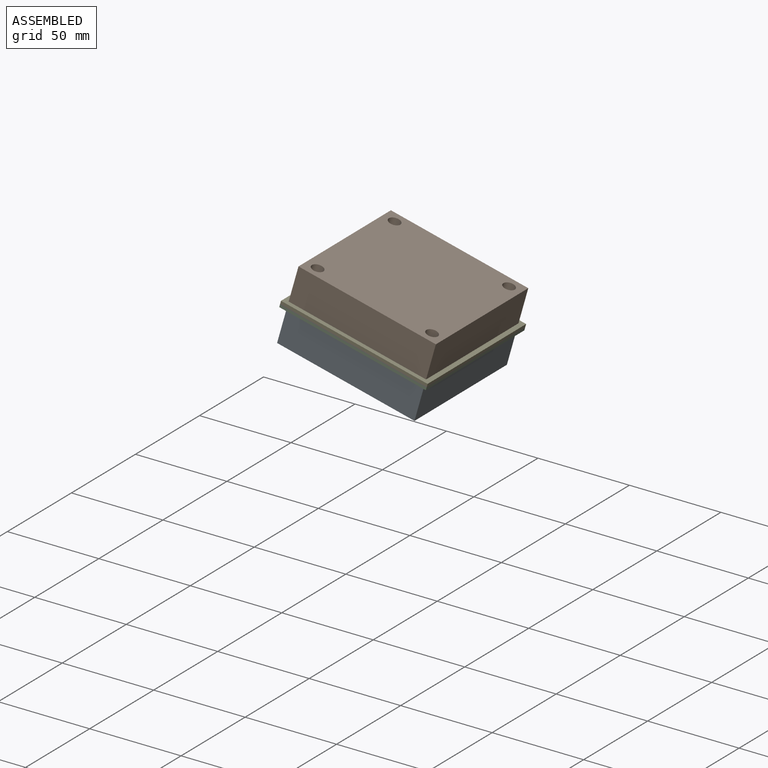
[diagram: assembled view]
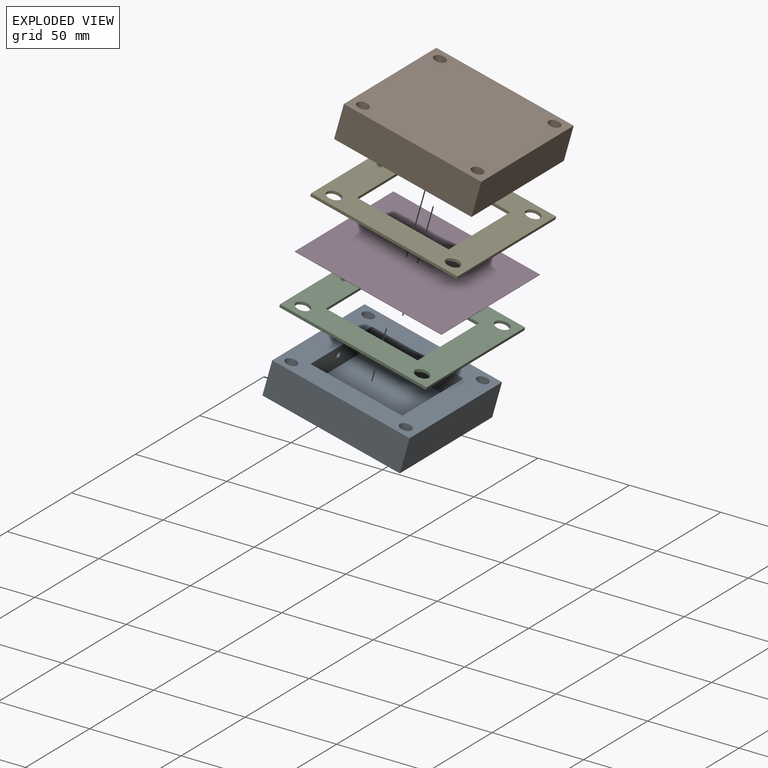
[diagram: exploded view]
GUIDED TOUR — MATED ASSEMBLY (Onshape document c1930f39cddbc49c126d4a82, AutoMate assembly c1930f39cddbc49c126d4a82_c4ecb20c4135cb43e5aa966c_4b7edb8deb91d0a844620ba2_default)

This assembly has 5 components, labeled P0..P4 below (a component is one placed occurrence of a part; the same part can appear more than once), held together by 4 mates. A mate is a constraint between two components; its type names the relative motion it leaves free:
  FASTENED — locks the two components together rigidly (no relative motion).
Axis/direction vectors are unit vectors and 'through' points are millimeter coordinates, both in the assembly's world frame.

MATES
  1. FASTENED "Fastened 3": P2 <-> P0, direction (-0.257, -0.036, -0.966) through (-26.39, 28.82, -5.89) mm
  2. FASTENED "Fastened 1": P4 <-> P1, direction (0.257, 0.036, 0.966) through (23.55, 30.38, -15.67) mm
  3. FASTENED "Fastened 2": P4 <-> P3, direction (-0.257, -0.036, -0.966) through (38.42, 15.53, -20.72) mm
  4. FASTENED "Fastened 4": P3 <-> P2, direction (-0.257, -0.036, -0.966) through (-2.38, 54.96, -11.59) mm

ASSEMBLY ORDER
  1. P4 — the base component [order verified]
  2. P3 [order verified]
  3. P2 [order verified]
  4. P1 [order verified]
  5. P0 [order verified]
Order-tag legend:
  [order verified] — this step's position reverses a verified removal order: the component was checked to insert without passing through the ones already placed.

Of the 5 components, 5 carry the full construction recipe — the FeatureScript program that regenerates the part's solid from scratch; the rest are supplied as boundary geometry only.
Each toured component is shown spotlighted twice — in the assembled view, then in the exploded view, where a leader line traces a displaced component back to its assembled socket (saturated green if recipe-attached, orange if geometry-only; every other component desaturated gray) — followed by its recipe or geometry summary and the mates that hold it.
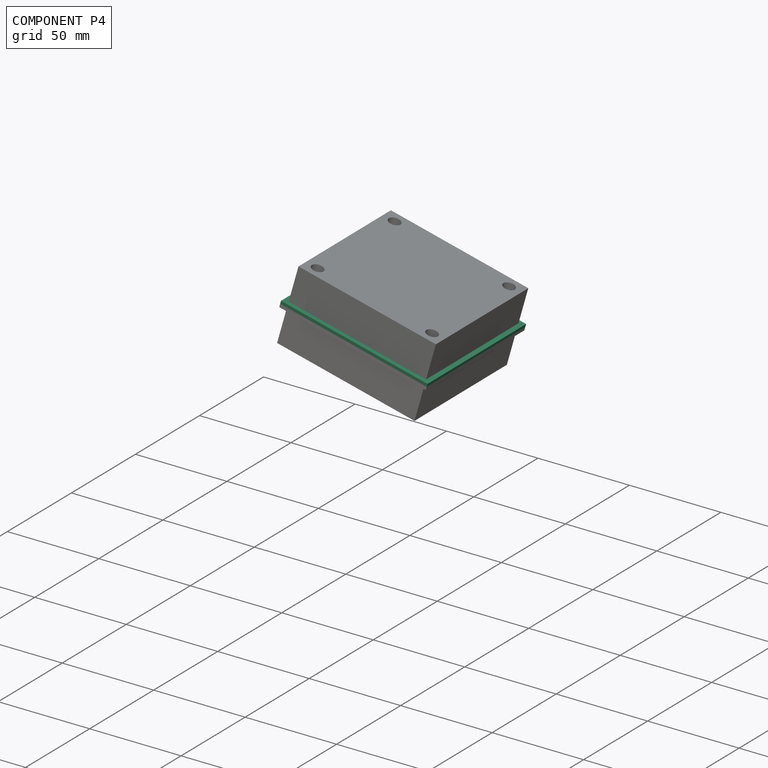
[diagram: component P4 — assembled]
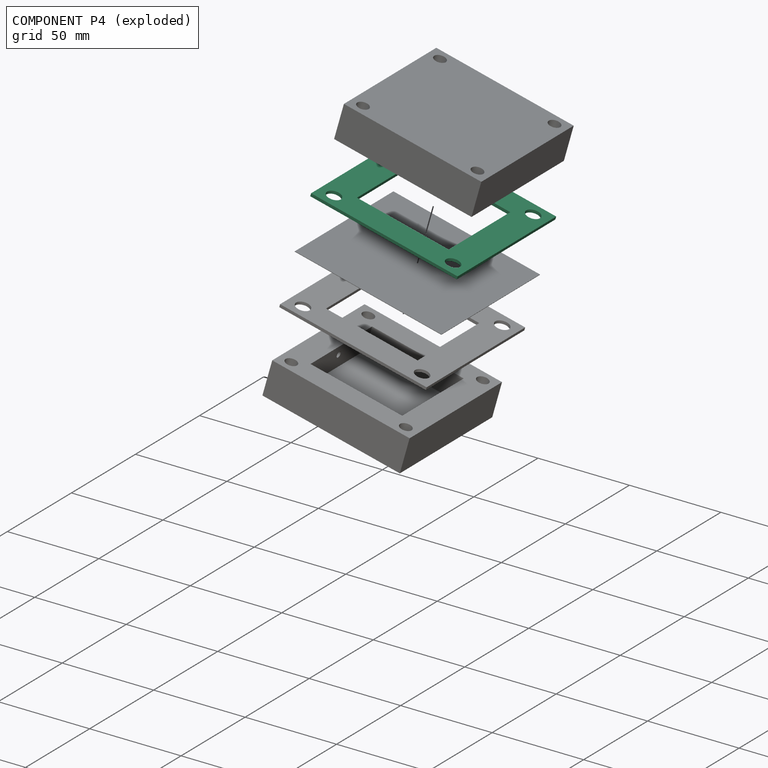
[diagram: component P4 — exploded]
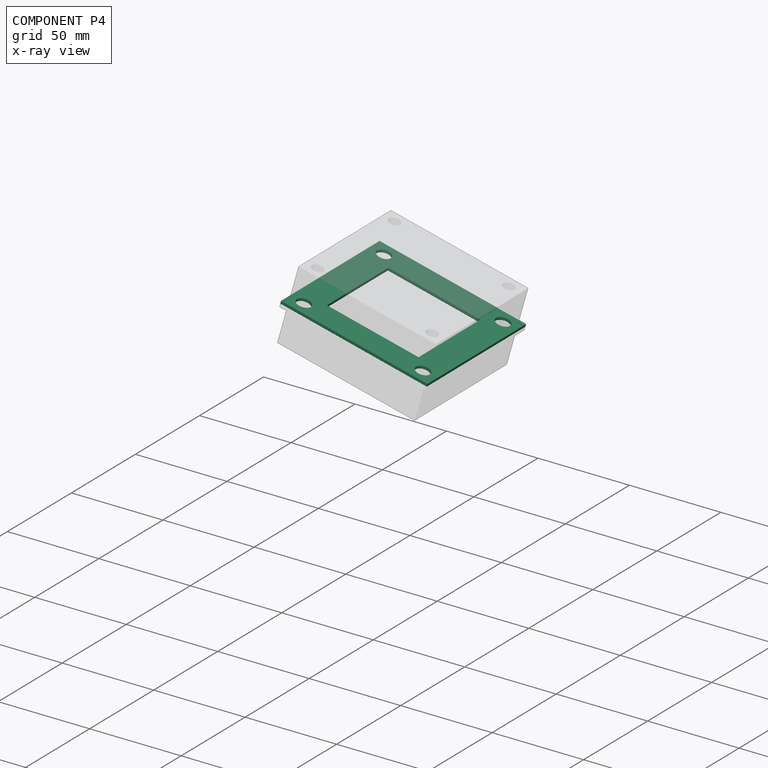
[diagram: component P4 — x-ray view]
COMPONENT P4 — same part as P2 (CADFS 00156926); its construction recipe is shown at P2.
Held by: FASTENED mate "Fastened 1" to P1; FASTENED mate "Fastened 2" to P3.
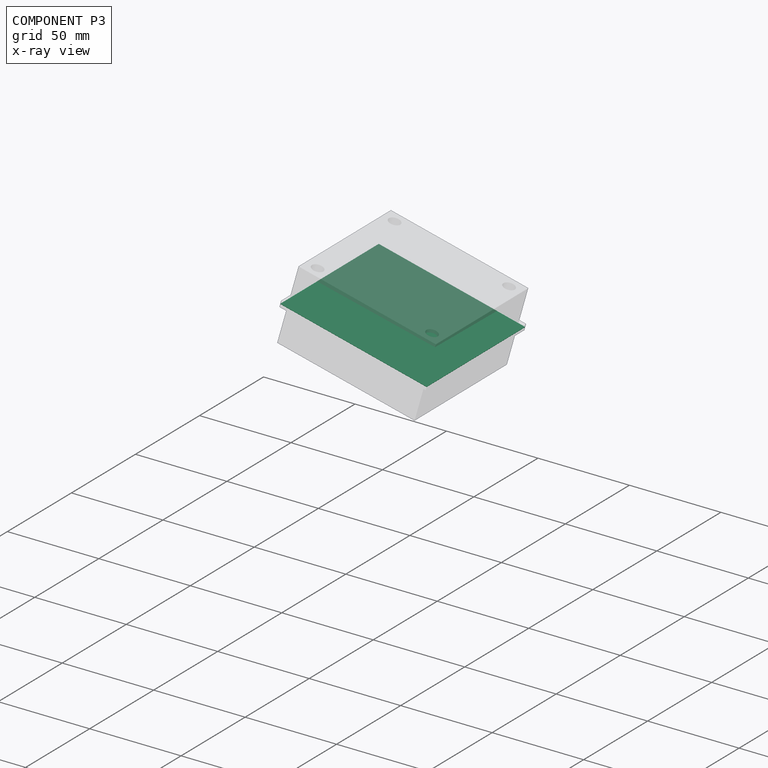
[diagram: component P3 — x-ray view]
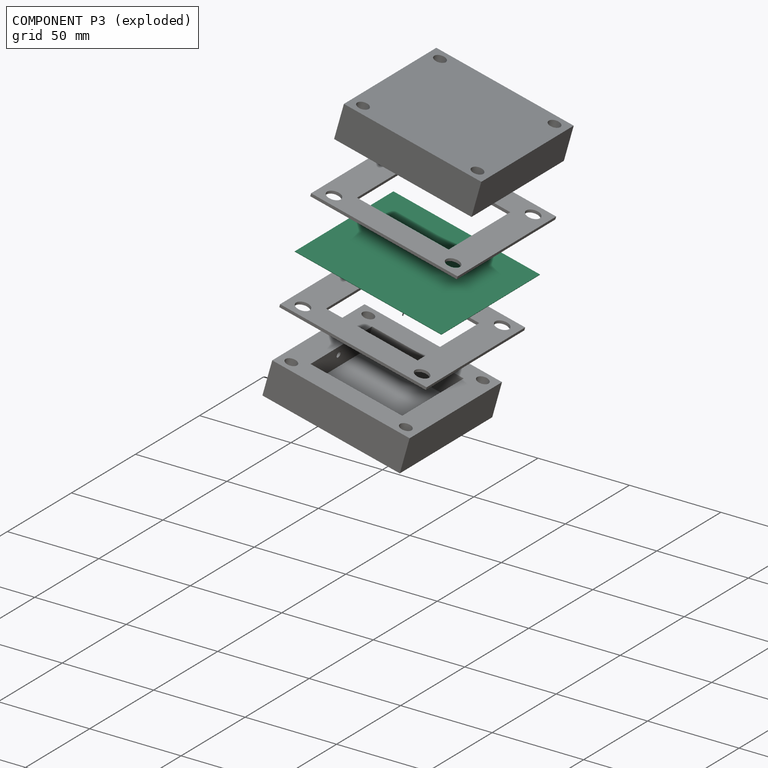
[diagram: component P3 — exploded]
COMPONENT P3 — recipe-attached (CADFS 00156925, mesh-verified: the recipe's output STEP matches this component's geometry to below the mesh-comparison resolution (tessellation chordal tolerance ~0.172 mm)).
Held by: FASTENED mate "Fastened 2" to P4; FASTENED mate "Fastened 4" to P2.
Construction recipe (FeatureScript — the CAD program that rebuilds this solid; sketch coordinates are in the units given by the * unit suffixes, e.g. mm):

FeatureScript 1549;
import(path : "onshape/std/geometry.fs", version : "1549.0");
import(path : "onshape/std/common.fs", version : "1549.0");
const mm = millimeter;
const VERTEX = EntityType.VERTEX;
const EDGE = EntityType.EDGE;
const FACE = EntityType.FACE;
const BODY = EntityType.BODY;
function v(x, y){return vector(x, y);}
function OD(order){return orderDisambiguation(order);}
function OSD(set){return originalSetDisambiguation(set);}
function TD(topology){return topologyDisambiguation(topology);}
function TDD(query){return trueDependencyDisambiguation(query);}
function sQuery(a, b, c) {return sketchEntityQuery(a, b, c);}

annotation { "Feature Type Name" : "Feature", "Feature Type Description" : "" }
export const myFeature = defineFeature(function(context is Context, id is Id, definition is map)
    precondition{}
    {
        {
            var Q0;
            Q0=qCreatedBy(makeId("Top.planeOp"),FACE);
            var sketch = newSketch(context, id + "F0", { "sketchPlane" : qUnion([Q0])});
            skLineSegment(sketch, "E0.bottom", {"start": v(-40.64, 40.64) * mm, "end": v(40.64, 40.64) * mm});
            skLineSegment(sketch, "E0.top", {"start": v(-40.64, -40.64) * mm, "end": v(40.64, -40.64) * mm});
            skLineSegment(sketch, "E0.left", {"start": v(-40.64, 40.64) * mm, "end": v(-40.64, -40.64) * mm});
            skLineSegment(sketch, "E0.right", {"start": v(40.64, 40.64) * mm, "end": v(40.64, -40.64) * mm});
            skLineSegment(sketch, "E1", {"start": v(0, 40.64) * mm, "end": v(0, 0) * mm, "construction": true});
            skLineSegment(sketch, "E2", {"start": v(0, 0) * mm, "end": v(-40.64, 0) * mm, "construction": true});
            skSolve(sketch);
        }
        {
            var Q0;
            Q0=makeQuery(id+"F0.imprint","IMPRINT",FACE,{"disambiguationData":[TD([[makeQuery(id+"F0.imprint","IMPRINT",EDGE,{"derivedFrom":sQuery(id+"F0.wireOp",EDGE,"E0.bottom")}),-1.0]])]});
            extrude(context, id + "F1", {"entities" : qUnion([Q0]), "depth" : 0.25 * mm});
        }
    });
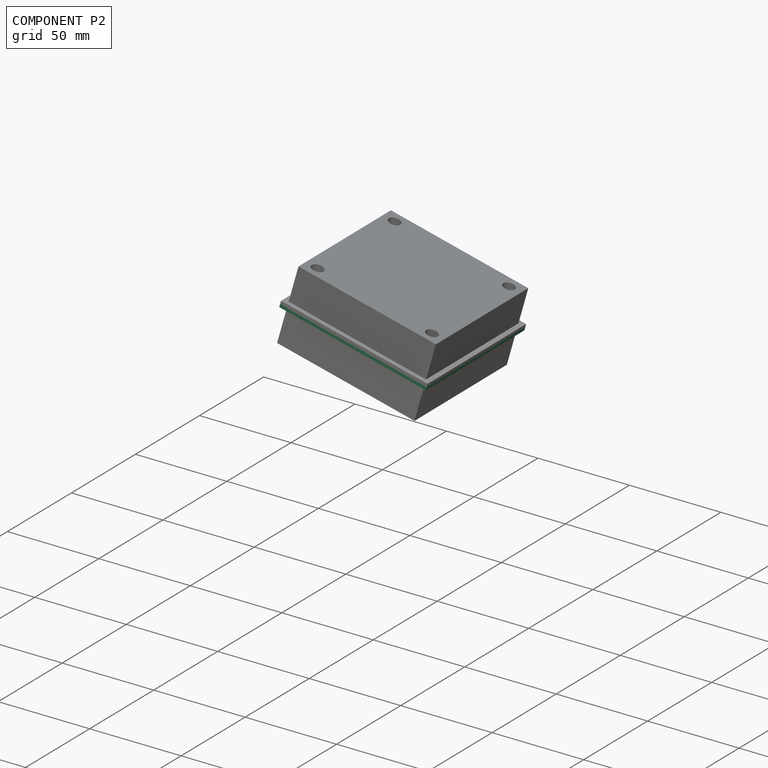
[diagram: component P2 — assembled]
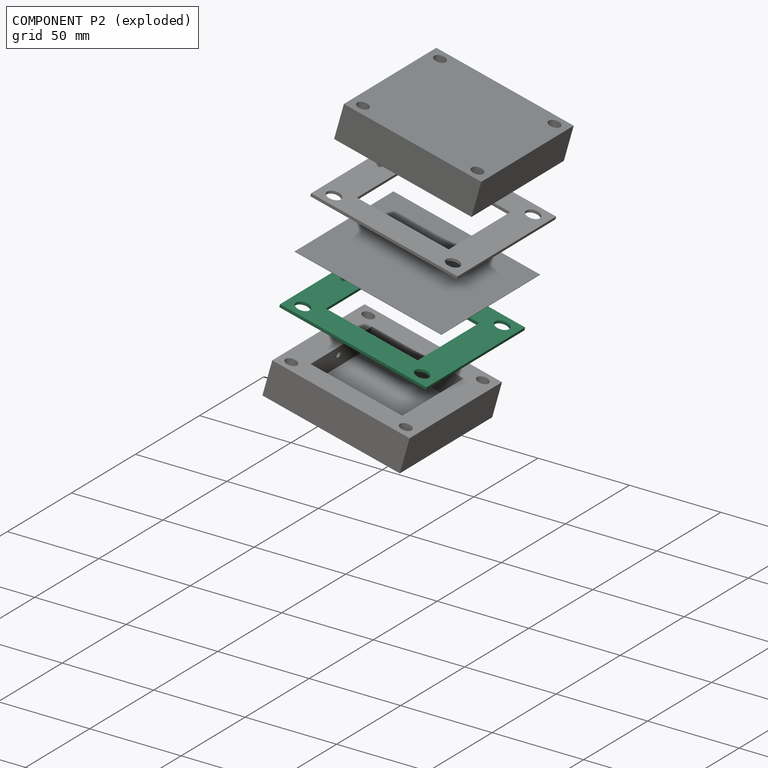
[diagram: component P2 — exploded]
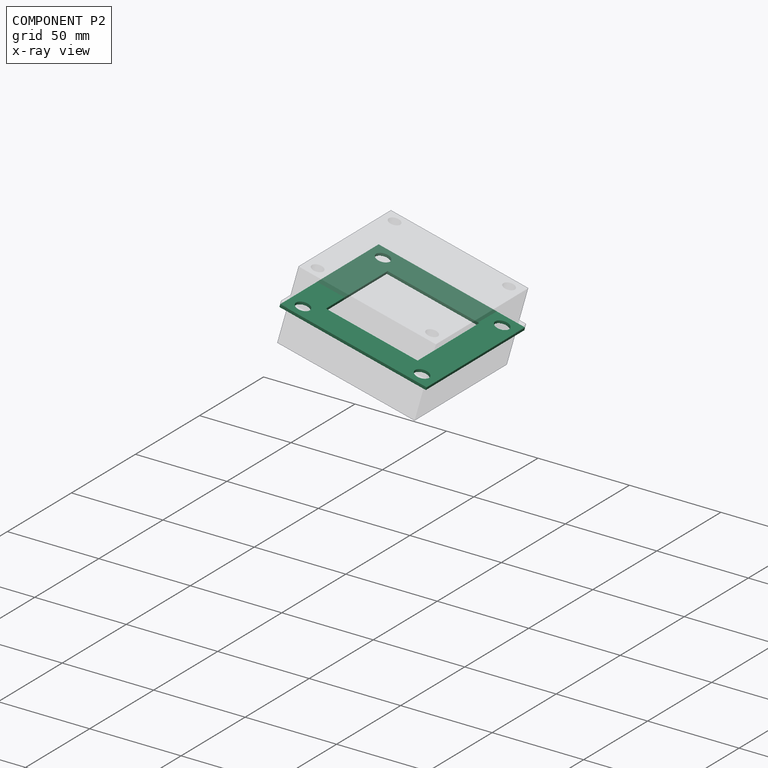
[diagram: component P2 — x-ray view]
COMPONENT P2 — recipe-attached (CADFS 00156926, mesh-verified: the recipe's output STEP matches this component's geometry to below the mesh-comparison resolution (tessellation chordal tolerance ~0.172 mm)).
Held by: FASTENED mate "Fastened 3" to P0; FASTENED mate "Fastened 4" to P3.
Construction recipe (FeatureScript — the CAD program that rebuilds this solid; sketch coordinates are in the units given by the * unit suffixes, e.g. mm):

FeatureScript 1549;
import(path : "onshape/std/geometry.fs", version : "1549.0");
import(path : "onshape/std/common.fs", version : "1549.0");
const mm = millimeter;
const VERTEX = EntityType.VERTEX;
const EDGE = EntityType.EDGE;
const FACE = EntityType.FACE;
const BODY = EntityType.BODY;
function v(x, y){return vector(x, y);}
function OD(order){return orderDisambiguation(order);}
function OSD(set){return originalSetDisambiguation(set);}
function TD(topology){return topologyDisambiguation(topology);}
function TDD(query){return trueDependencyDisambiguation(query);}
function sQuery(a, b, c) {return sketchEntityQuery(a, b, c);}

annotation { "Feature Type Name" : "Feature", "Feature Type Description" : "" }
export const myFeature = defineFeature(function(context is Context, id is Id, definition is map)
    precondition{}
    {
        {
            var Q0;
            Q0=qCreatedBy(makeId("Top.planeOp"),FACE);
            var sketch = newSketch(context, id + "F0", { "sketchPlane" : qUnion([Q0])});
            skLineSegment(sketch, "E0.bottom", {"start": v(-31.71, 9.78) * mm, "end": v(19.09, 9.78) * mm});
            skLineSegment(sketch, "E0.top", {"start": v(-31.71, -41.02) * mm, "end": v(19.09, -41.02) * mm});
            skLineSegment(sketch, "E0.left", {"start": v(-31.71, 9.78) * mm, "end": v(-31.71, -41.02) * mm});
            skLineSegment(sketch, "E0.right", {"start": v(19.09, 9.78) * mm, "end": v(19.09, -41.02) * mm});
            skLineSegment(sketch, "E1.bottom", {"start": v(-46.95, 25.02) * mm, "end": v(34.33, 25.02) * mm});
            skLineSegment(sketch, "E1.top", {"start": v(-46.95, -56.26) * mm, "end": v(34.33, -56.26) * mm});
            skLineSegment(sketch, "E1.left", {"start": v(-46.95, 25.02) * mm, "end": v(-46.95, -56.26) * mm});
            skLineSegment(sketch, "E1.right", {"start": v(34.33, 25.02) * mm, "end": v(34.33, -56.26) * mm});
            skLineSegment(sketch, "E2.bottom", {"start": v(19.09, -41.02) * mm, "end": v(34.33, -41.02) * mm});
            skLineSegment(sketch, "E2.top", {"start": v(19.09, -56.26) * mm, "end": v(34.33, -56.26) * mm});
            skLineSegment(sketch, "E2.left", {"start": v(19.09, -41.02) * mm, "end": v(19.09, -56.26) * mm});
            skLineSegment(sketch, "E2.right", {"start": v(34.33, -41.02) * mm, "end": v(34.33, -56.26) * mm});
            skLineSegment(sketch, "E3.bottom", {"start": v(-31.71, -41.02) * mm, "end": v(-46.95, -41.02) * mm});
            skLineSegment(sketch, "E3.top", {"start": v(-31.71, -56.26) * mm, "end": v(-46.95, -56.26) * mm});
            skLineSegment(sketch, "E3.left", {"start": v(-31.71, -41.02) * mm, "end": v(-31.71, -56.26) * mm});
            skLineSegment(sketch, "E3.right", {"start": v(-46.95, -41.02) * mm, "end": v(-46.95, -56.26) * mm});
            skLineSegment(sketch, "E4.bottom", {"start": v(-31.71, 9.78) * mm, "end": v(-46.95, 9.78) * mm});
            skLineSegment(sketch, "E4.top", {"start": v(-31.71, 25.02) * mm, "end": v(-46.95, 25.02) * mm});
            skLineSegment(sketch, "E4.left", {"start": v(-31.71, 9.78) * mm, "end": v(-31.71, 25.02) * mm});
            skLineSegment(sketch, "E4.right", {"start": v(-46.95, 9.78) * mm, "end": v(-46.95, 25.02) * mm});
            skLineSegment(sketch, "E5.bottom", {"start": v(19.09, 9.78) * mm, "end": v(34.33, 9.78) * mm});
            skLineSegment(sketch, "E5.top", {"start": v(19.09, 25.02) * mm, "end": v(34.33, 25.02) * mm});
            skLineSegment(sketch, "E5.left", {"start": v(19.09, 9.78) * mm, "end": v(19.09, 25.02) * mm});
            skLineSegment(sketch, "E5.right", {"start": v(34.33, 9.78) * mm, "end": v(34.33, 25.02) * mm});
            skCircle(sketch, "E6", {"center": v(-39.33, -48.64) * mm, "radius": 3.81 * mm});
            skCircle(sketch, "E7", {"center": v(-39.33, 17.4) * mm, "radius": 3.81 * mm});
            skCircle(sketch, "E8", {"center": v(26.7, 17.4) * mm, "radius": 3.81 * mm});
            skCircle(sketch, "E9", {"center": v(26.7, -48.64) * mm, "radius": 3.81 * mm});
            skSolve(sketch);
        }
        {
            var Q0;
            {var subQ1=sQuery(id+"F0.wireOp",EDGE,"E3.top");Q0=makeQuery(id+"F0.imprint","IMPRINT",FACE,{"disambiguationData":[TD([[makeQuery(id+"F0.imprint","IMPRINT",EDGE,{"derivedFrom":subQ1}),-1.0]])]});}
            var Q1;
            Q1=makeQuery(id+"F0.imprint","IMPRINT",FACE,{"disambiguationData":[TD([[makeQuery(id+"F0.imprint","IMPRINT",EDGE,{"derivedFrom":sQuery(id+"F0.wireOp",EDGE,"E2.bottom")}),-1.0]])]});
            var Q2;
            Q2=makeQuery(id+"F0.imprint","IMPRINT",FACE,{"disambiguationData":[TD([[makeQuery(id+"F0.imprint","IMPRINT",EDGE,{"derivedFrom":sQuery(id+"F0.wireOp",EDGE,"E2.top")}),1.0]])]});
            var Q3;
            Q3=makeQuery(id+"F0.imprint","IMPRINT",FACE,{"disambiguationData":[TD([[makeQuery(id+"F0.imprint","IMPRINT",EDGE,{"derivedFrom":sQuery(id+"F0.wireOp",EDGE,"E4.bottom")}),-1.0]])]});
            var Q4;
            Q4=makeQuery(id+"F0.imprint","IMPRINT",FACE,{"disambiguationData":[TD([[makeQuery(id+"F0.imprint","IMPRINT",EDGE,{"derivedFrom":sQuery(id+"F0.wireOp",EDGE,"E4.top")}),1.0]])]});
            var Q5;
            Q5=makeQuery(id+"F0.imprint","IMPRINT",FACE,{"disambiguationData":[TD([[makeQuery(id+"F0.imprint","IMPRINT",EDGE,{"derivedFrom":sQuery(id+"F0.wireOp",EDGE,"E5.bottom")}),1.0]])]});
            var Q6;
            Q6=makeQuery(id+"F0.imprint","IMPRINT",FACE,{"disambiguationData":[TD([[makeQuery(id+"F0.imprint","IMPRINT",EDGE,{"derivedFrom":sQuery(id+"F0.wireOp",EDGE,"E5.top")}),-1.0]])]});
            var Q7;
            {var subQ0=sQuery(id+"F0.wireOp",EDGE,"E6");var subQ1=sQuery(id+"F0.wireOp",EDGE,"6TTmRBJs-6HWV-zHlN-zFCb-LBSHuJk2n4DZ");var subQ2=makeQuery(id+"F0.imprint","INTERSECT",VERTEX,{"disambiguationData":[OD(0.0)],"derivedFrom":[subQ1,subQ0]});Q7=makeQuery(id+"F0.imprint","IMPRINT",FACE,{"disambiguationData":[TD([[makeQuery(id+"F0.imprint","IMPRINT",EDGE,{"disambiguationData":[TD([[subQ2,-1.0]])],"derivedFrom":subQ1}),-1.0]])]});}
            var Q8;
            {var subQ0=sQuery(id+"F0.wireOp",EDGE,"E6");var subQ1=sQuery(id+"F0.wireOp",EDGE,"6TTmRBJs-6HWV-zHlN-zFCb-LBSHuJk2n4DZ");var subQ2=makeQuery(id+"F0.imprint","INTERSECT",VERTEX,{"disambiguationData":[OD(0.0)],"derivedFrom":[subQ1,subQ0]});Q8=makeQuery(id+"F0.imprint","IMPRINT",FACE,{"disambiguationData":[TD([[makeQuery(id+"F0.imprint","IMPRINT",EDGE,{"disambiguationData":[TD([[subQ2,-1.0]])],"derivedFrom":subQ1}),1.0]])]});}
            var Q9;
            Q9=makeQuery(id+"F0.imprint","IMPRINT",FACE,{"disambiguationData":[TD([[makeQuery(id+"F0.imprint","IMPRINT",EDGE,{"derivedFrom":sQuery(id+"F0.wireOp",EDGE,"E0.bottom")}),1.0]])]});
            var Q10;
            Q10=makeQuery(id+"F0.imprint","IMPRINT",FACE,{"disambiguationData":[TD([[makeQuery(id+"F0.imprint","IMPRINT",EDGE,{"derivedFrom":sQuery(id+"F0.wireOp",EDGE,"E0.top")}),-1.0]])]});
            var Q11;
            Q11=makeQuery(id+"F0.imprint","IMPRINT",FACE,{"disambiguationData":[TD([[makeQuery(id+"F0.imprint","IMPRINT",EDGE,{"derivedFrom":sQuery(id+"F0.wireOp",EDGE,"E0.left")}),-1.0]])]});
            var Q12;
            Q12=makeQuery(id+"F0.imprint","IMPRINT",FACE,{"disambiguationData":[TD([[makeQuery(id+"F0.imprint","IMPRINT",EDGE,{"derivedFrom":sQuery(id+"F0.wireOp",EDGE,"E0.right")}),1.0]])]});
            var Q13;
            {var subQ4=sQuery(id+"F0.wireOp",EDGE,"E3.bottom");Q13=makeQuery(id+"F0.imprint","IMPRINT",FACE,{"disambiguationData":[TD([[makeQuery(id+"F0.imprint","IMPRINT",EDGE,{"derivedFrom":subQ4}),1.0]])]});}
            extrude(context, id + "F1", {"entities" : qUnion([Q0, Q1, Q2, Q3, Q4, Q5, Q6, Q7, Q8, Q9, Q10, Q11, Q12, Q13]), "depth" : 1.59 * mm});
        }
    });
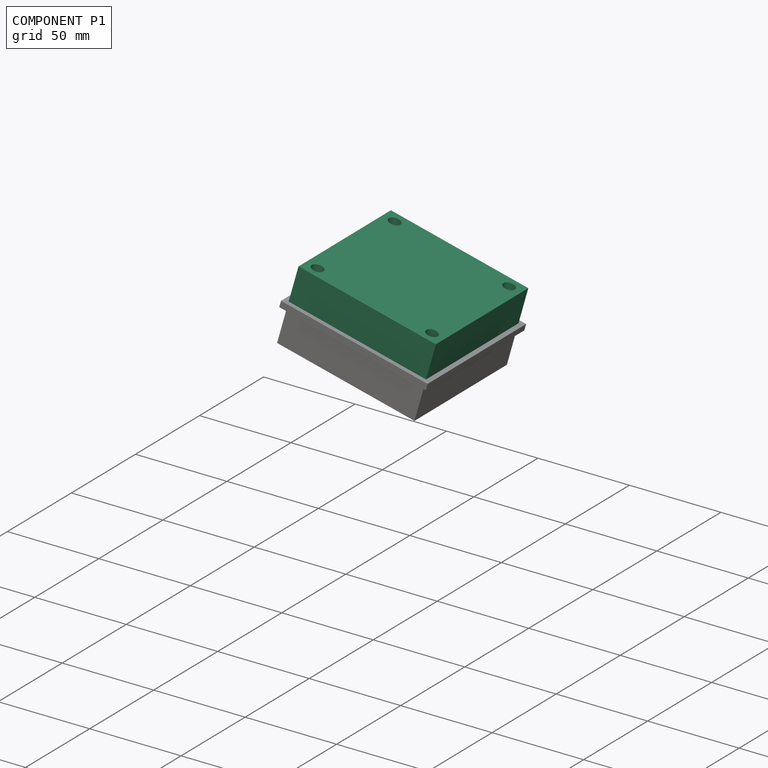
[diagram: component P1 — assembled]
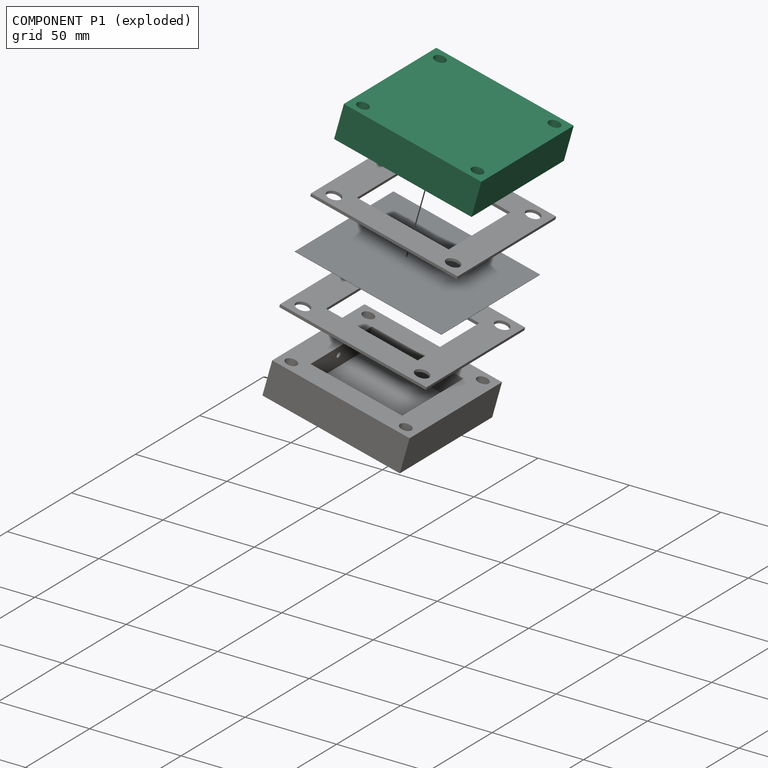
[diagram: component P1 — exploded]
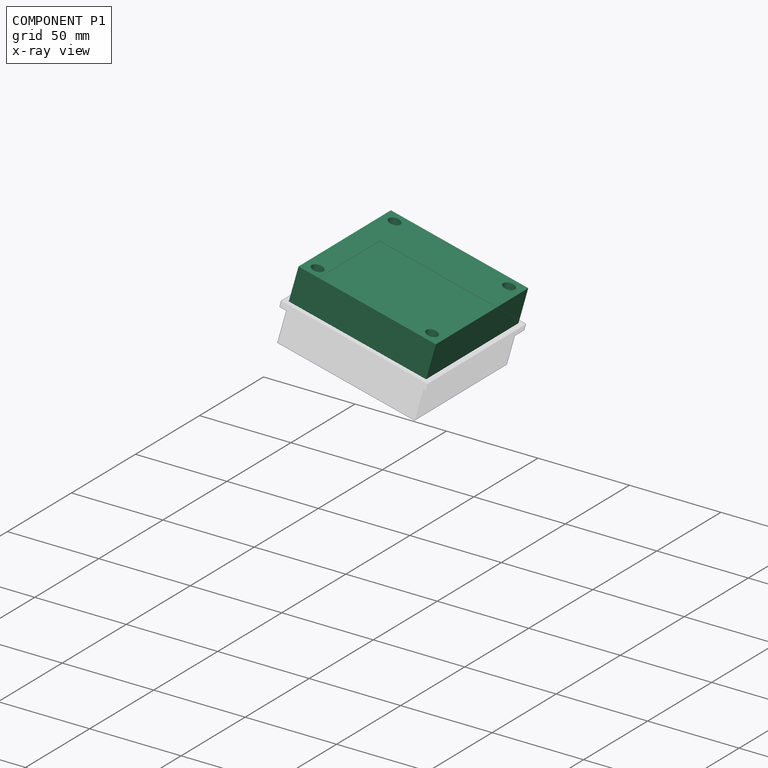
[diagram: component P1 — x-ray view]
COMPONENT P1 — same part as P0 (CADFS 00156924); its construction recipe is shown at P0.
Held by: FASTENED mate "Fastened 1" to P4.
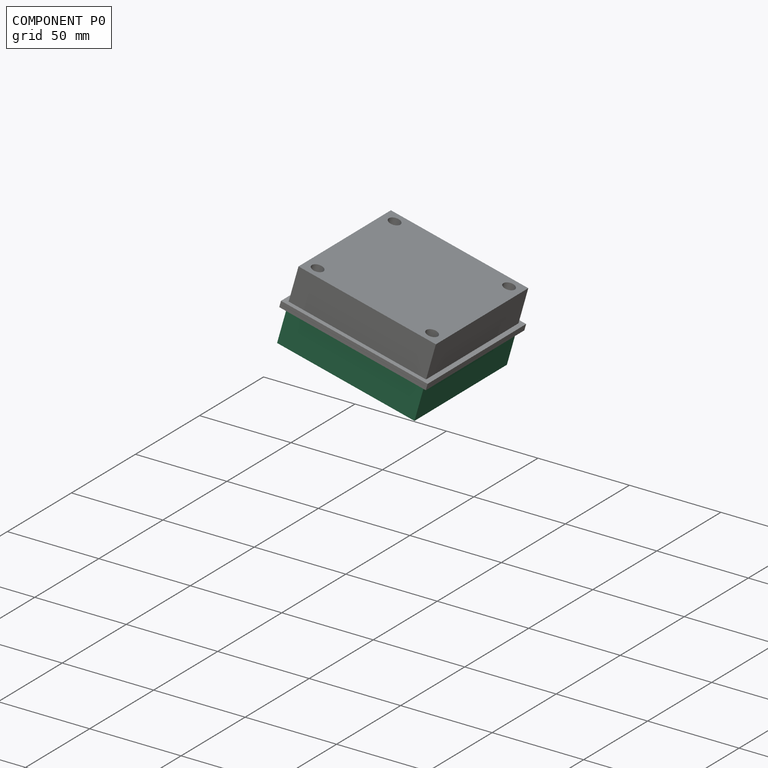
[diagram: component P0 — assembled]
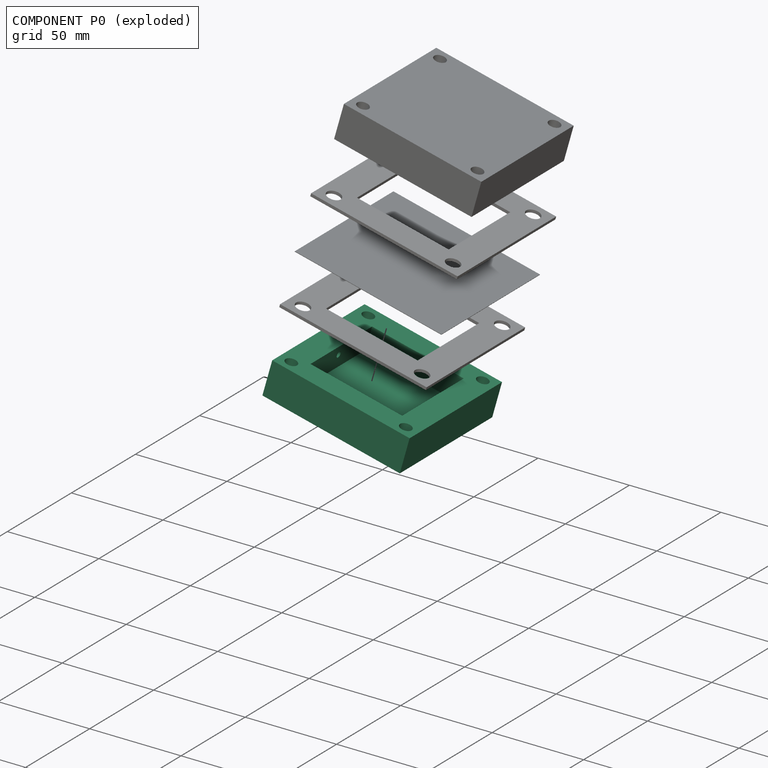
[diagram: component P0 — exploded]
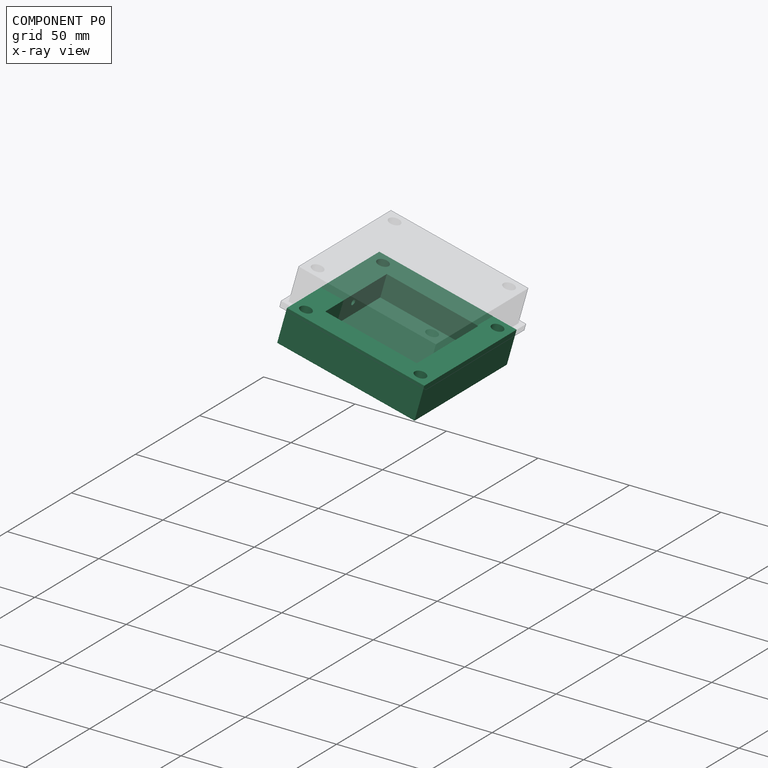
[diagram: component P0 — x-ray view]
COMPONENT P0 — recipe-attached (CADFS 00156924, mesh-verified: the recipe's output STEP matches this component's geometry to below the mesh-comparison resolution (tessellation chordal tolerance ~0.164 mm)).
Held by: FASTENED mate "Fastened 3" to P2.
Construction recipe (FeatureScript — the CAD program that rebuilds this solid; sketch coordinates are in the units given by the * unit suffixes, e.g. mm):

FeatureScript 1549;
import(path : "onshape/std/geometry.fs", version : "1549.0");
import(path : "onshape/std/common.fs", version : "1549.0");
const mm = millimeter;
const VERTEX = EntityType.VERTEX;
const EDGE = EntityType.EDGE;
const FACE = EntityType.FACE;
const BODY = EntityType.BODY;
function v(x, y){return vector(x, y);}
function OD(order){return orderDisambiguation(order);}
function OSD(set){return originalSetDisambiguation(set);}
function TD(topology){return topologyDisambiguation(topology);}
function TDD(query){return trueDependencyDisambiguation(query);}
function sQuery(a, b, c) {return sketchEntityQuery(a, b, c);}

annotation { "Feature Type Name" : "Feature", "Feature Type Description" : "" }
export const myFeature = defineFeature(function(context is Context, id is Id, definition is map)
    precondition{}
    {
        {
            var Q0;
            Q0=qCreatedBy(makeId("Top.planeOp"),FACE);
            var sketch = newSketch(context, id + "F0", { "sketchPlane" : qUnion([Q0])});
            skLineSegment(sketch, "E0.bottom", {"start": v(-38.1, 38.1) * mm, "end": v(38.1, 38.1) * mm});
            skLineSegment(sketch, "E0.top", {"start": v(-38.1, -38.1) * mm, "end": v(38.1, -38.1) * mm});
            skLineSegment(sketch, "E0.left", {"start": v(-38.1, 38.1) * mm, "end": v(-38.1, -38.1) * mm});
            skLineSegment(sketch, "E0.right", {"start": v(38.1, 38.1) * mm, "end": v(38.1, -38.1) * mm});
            skLineSegment(sketch, "E1.bottom", {"start": v(-25.4, 25.4) * mm, "end": v(25.4, 25.4) * mm});
            skLineSegment(sketch, "E1.top", {"start": v(-25.4, -25.4) * mm, "end": v(25.4, -25.4) * mm});
            skLineSegment(sketch, "E1.left", {"start": v(-25.4, 25.4) * mm, "end": v(-25.4, -25.4) * mm});
            skLineSegment(sketch, "E1.right", {"start": v(25.4, 25.4) * mm, "end": v(25.4, -25.4) * mm});
            skLineSegment(sketch, "E2", {"start": v(0, 38.1) * mm, "end": v(0, 25.4) * mm, "construction": true});
            skLineSegment(sketch, "E3", {"start": v(0, 25.4) * mm, "end": v(0, 38.1) * mm, "construction": true});
            skLineSegment(sketch, "E4", {"start": v(-38.1, 0) * mm, "end": v(-25.4, 0) * mm, "construction": true});
            skSolve(sketch);
        }
        {
            var Q0;
            Q0=makeQuery(id+"F0.imprint","IMPRINT",FACE,{"disambiguationData":[TD([[makeQuery(id+"F0.imprint","IMPRINT",EDGE,{"derivedFrom":sQuery(id+"F0.wireOp",EDGE,"E0.bottom")}),-1.0]])]});
            var Q1;
            Q1=makeQuery(id+"F0.imprint","IMPRINT",FACE,{"disambiguationData":[TD([[makeQuery(id+"F0.imprint","IMPRINT",EDGE,{"derivedFrom":sQuery(id+"F0.wireOp",EDGE,"E1.bottom")}),-1.0]])]});
            extrude(context, id + "F1", {"entities" : qUnion([Q0, Q1]), "depth" : 6.35 * mm});
        }
        {
            var Q0;
            Q0=makeQuery(id+"F0.imprint","IMPRINT",FACE,{"disambiguationData":[TD([[makeQuery(id+"F0.imprint","IMPRINT",EDGE,{"derivedFrom":sQuery(id+"F0.wireOp",EDGE,"E0.bottom")}),-1.0]])]});
            extrude(context, id + "F2", {"entities" : qUnion([Q0]), "operationType" : NewBodyOperationType.ADD, "depth" : 19.05 * mm});
        }
        {
            var Q0;
            {var subQ0=sQuery(id+"F0.wireOp",EDGE,"E0.bottom");Q0=makeQuery(id+"F2.boolean.opBoolean","MERGE",FACE,{"derivedFrom":[makeQuery(id+"F1.opExtrude","SWEPT_FACE",FACE,{"disambiguationData":[OSD([subQ0])]}),makeQuery(id+"F2.opExtrude","SWEPT_FACE",FACE,{"disambiguationData":[OSD([subQ0])]})]});}
            var sketch = newSketch(context, id + "F3", { "sketchPlane" : qUnion([Q0])});
            skCircle(sketch, "E5", {"center": v(0, 13.97) * mm, "radius": 1.59 * mm});
            skSolve(sketch);
        }
        {
            var Q0;
            Q0=makeQuery(id+"F3.imprint","IMPRINT",FACE,{"disambiguationData":[TD([[makeQuery(id+"F3.imprint","IMPRINT",EDGE,{"derivedFrom":sQuery(id+"F3.wireOp",EDGE,"E5")}),1.0]])]});
            extrude(context, id + "F4", {"entities" : qUnion([Q0]), "operationType" : NewBodyOperationType.REMOVE, "oppositeDirection" : true, "depth" : 25.4 * mm});
        }
        {
            var Q0;
            Q0=makeQuery(id+"F2.opExtrude","CAP_FACE",FACE,{"disambiguationData":[OSD([sQuery(id+"F0.wireOp",EDGE,"E0.bottom"),sQuery(id+"F0.wireOp",EDGE,"E0.top"),sQuery(id+"F0.wireOp",EDGE,"E0.left"),sQuery(id+"F0.wireOp",EDGE,"E0.right"),sQuery(id+"F0.wireOp",EDGE,"E1.bottom"),sQuery(id+"F0.wireOp",EDGE,"E1.top"),sQuery(id+"F0.wireOp",EDGE,"E1.left"),sQuery(id+"F0.wireOp",EDGE,"E1.right")])],"isStart":false});
            var sketch = newSketch(context, id + "F5", { "sketchPlane" : qUnion([Q0])});
            skLineSegment(sketch, "E6.bottom", {"start": v(-38.1, 38.1) * mm, "end": v(-25.4, 38.1) * mm});
            skLineSegment(sketch, "E6.top", {"start": v(-38.1, 25.4) * mm, "end": v(-25.4, 25.4) * mm});
            skLineSegment(sketch, "E6.left", {"start": v(-38.1, 38.1) * mm, "end": v(-38.1, 25.4) * mm});
            skLineSegment(sketch, "E6.right", {"start": v(-25.4, 38.1) * mm, "end": v(-25.4, 25.4) * mm});
            skLineSegment(sketch, "E7.bottom", {"start": v(25.4, 25.4) * mm, "end": v(38.1, 25.4) * mm});
            skLineSegment(sketch, "E7.top", {"start": v(25.4, 38.1) * mm, "end": v(38.1, 38.1) * mm});
            skLineSegment(sketch, "E7.left", {"start": v(25.4, 25.4) * mm, "end": v(25.4, 38.1) * mm});
            skLineSegment(sketch, "E7.right", {"start": v(38.1, 25.4) * mm, "end": v(38.1, 38.1) * mm});
            skLineSegment(sketch, "E8.bottom", {"start": v(25.4, -25.4) * mm, "end": v(38.1, -25.4) * mm});
            skLineSegment(sketch, "E8.top", {"start": v(25.4, -38.1) * mm, "end": v(38.1, -38.1) * mm});
            skLineSegment(sketch, "E8.left", {"start": v(25.4, -25.4) * mm, "end": v(25.4, -38.1) * mm});
            skLineSegment(sketch, "E8.right", {"start": v(38.1, -25.4) * mm, "end": v(38.1, -38.1) * mm});
            skLineSegment(sketch, "E9.bottom", {"start": v(-25.4, -25.4) * mm, "end": v(-38.1, -25.4) * mm});
            skLineSegment(sketch, "E9.top", {"start": v(-25.4, -38.1) * mm, "end": v(-38.1, -38.1) * mm});
            skLineSegment(sketch, "E9.left", {"start": v(-25.4, -25.4) * mm, "end": v(-25.4, -38.1) * mm});
            skLineSegment(sketch, "E9.right", {"start": v(-38.1, -25.4) * mm, "end": v(-38.1, -38.1) * mm});
            skCircle(sketch, "E10", {"center": v(-31.75, 31.75) * mm, "radius": 3.18 * mm});
            skCircle(sketch, "E11", {"center": v(31.75, 31.75) * mm, "radius": 3.18 * mm});
            skCircle(sketch, "E12", {"center": v(31.75, -31.75) * mm, "radius": 317.5 * mm});
            skCircle(sketch, "E13", {"center": v(-31.75, -31.75) * mm, "radius": 3.18 * mm});
            skCircle(sketch, "E14", {"center": v(31.75, -31.75) * mm, "radius": 3.18 * mm});
            skSolve(sketch);
        }
        {
            var Q0;
            Q0=makeQuery(id+"F5.imprint","IMPRINT",FACE,{"disambiguationData":[TD([[makeQuery(id+"F5.imprint","IMPRINT",EDGE,{"derivedFrom":sQuery(id+"F5.wireOp",EDGE,"E10")}),1.0]])]});
            var Q1;
            Q1=makeQuery(id+"F5.imprint","IMPRINT",FACE,{"disambiguationData":[TD([[makeQuery(id+"F5.imprint","IMPRINT",EDGE,{"derivedFrom":sQuery(id+"F5.wireOp",EDGE,"E11")}),1.0]])]});
            var Q2;
            Q2=makeQuery(id+"F5.imprint","IMPRINT",FACE,{"disambiguationData":[TD([[makeQuery(id+"F5.imprint","IMPRINT",EDGE,{"derivedFrom":sQuery(id+"F5.wireOp",EDGE,"E14")}),1.0]])]});
            var Q3;
            Q3=makeQuery(id+"F5.imprint","IMPRINT",FACE,{"disambiguationData":[TD([[makeQuery(id+"F5.imprint","IMPRINT",EDGE,{"derivedFrom":sQuery(id+"F5.wireOp",EDGE,"E13")}),1.0]])]});
            extrude(context, id + "F6", {"entities" : qUnion([Q0, Q1, Q2, Q3]), "operationType" : NewBodyOperationType.REMOVE, "endBound" : BoundingType.THROUGH_ALL, "oppositeDirection" : true, "depth" : 25.4 * mm});
        }
    });
PROVENANCE & LICENSES
Assembly (occurrences, transforms, mates, per-part STEP geometry): AutoMate dataset, Zenodo record 7776208, CC0.
Construction recipes: CADFS (HuggingFace VladPyatov/CADFS, CC-BY-4.0, layered over the ABC dataset), FeatureScript reconstruction programs keyed by ABC model id.
Join: ABC meta listings map ABC model id -> Onshape documentId; within a shared document, parts are matched by geometric signature (bounding-box dims + volume at 0.1% relative tolerance, exact B-rep face/solid counts).
Verification: 5 of this assembly's 5 components carry a recipe attachment, and every attachment is mesh-verified: the CADFS STEP and the AutoMate member STEP were compared as meshes in their shared local frame (symmetric sampled-point-to-mesh distance); worst across the 5 attachments: below the mesh-comparison resolution (tessellation chordal tolerance ~0.172 mm) on a 115 mm part.
Renders: orthographic iso camera (az 35 / el 25); the floor grid conveys scale (grid pitch printed in each image; no ruler). In the exploded view each component is displaced by its stored offset vector: the offsets alone carry the explosion direction (mate normal/axis signs are not orientation cues and do not encode it), and separation distances are assigned per mate-chain, not proportionally to assembly-order depth.
